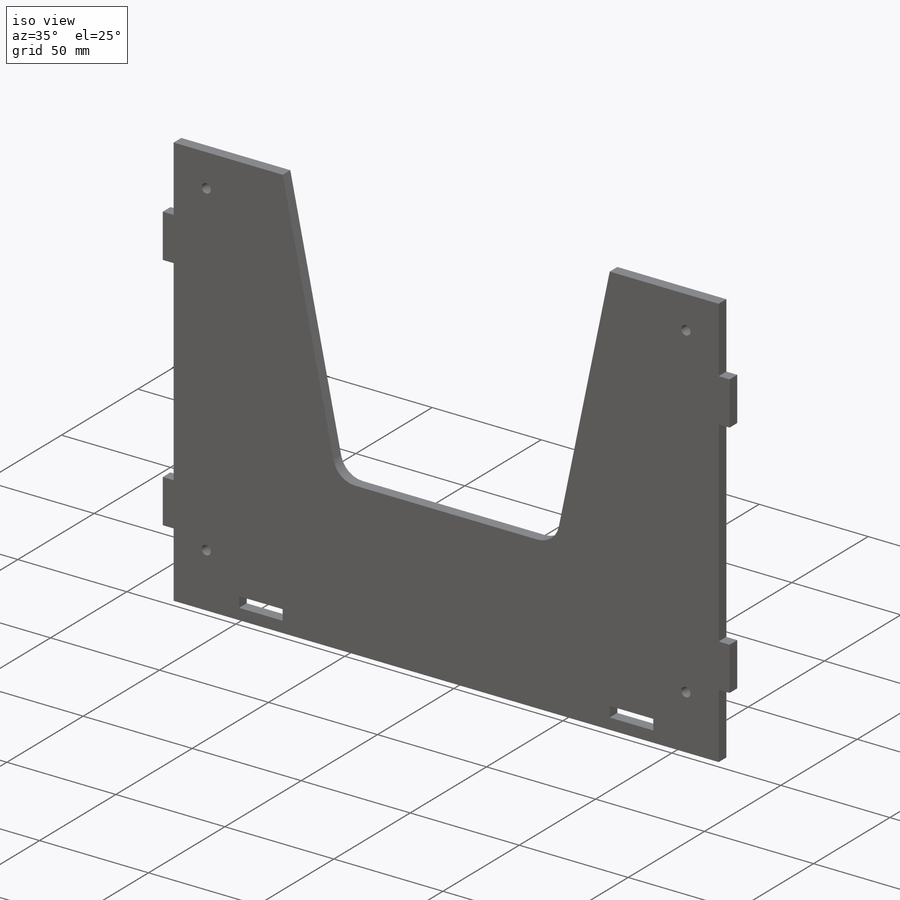
[diagram: iso view]
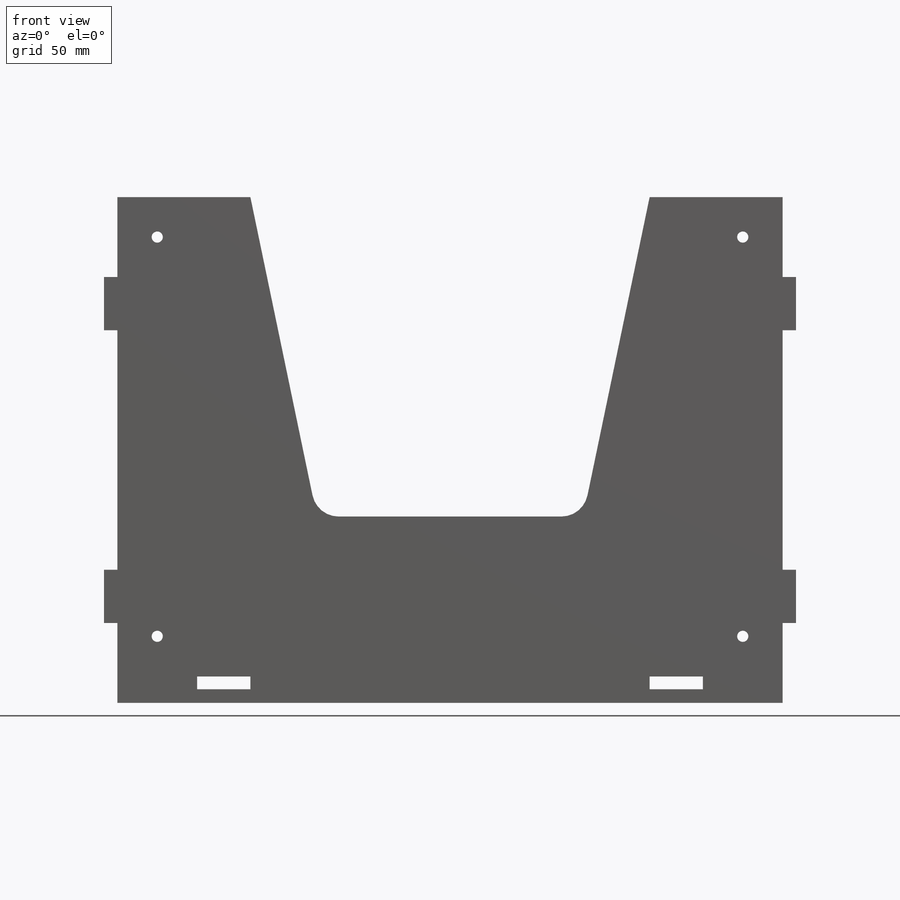
[diagram: front view]
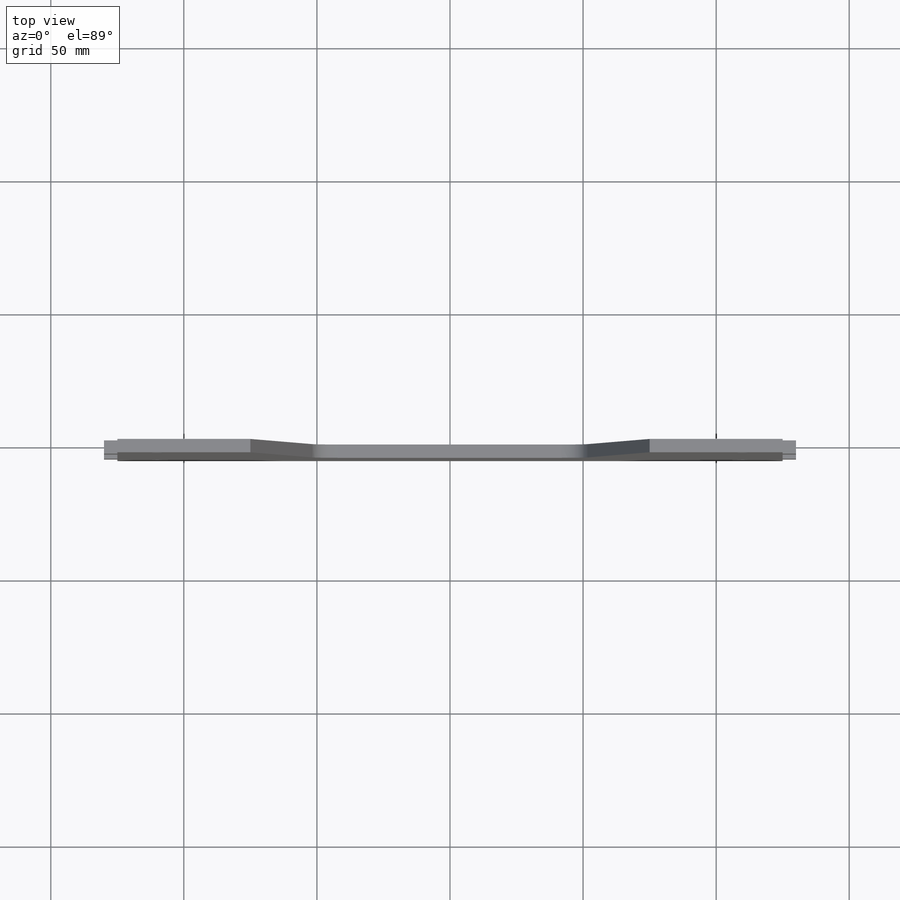
[diagram: top view]
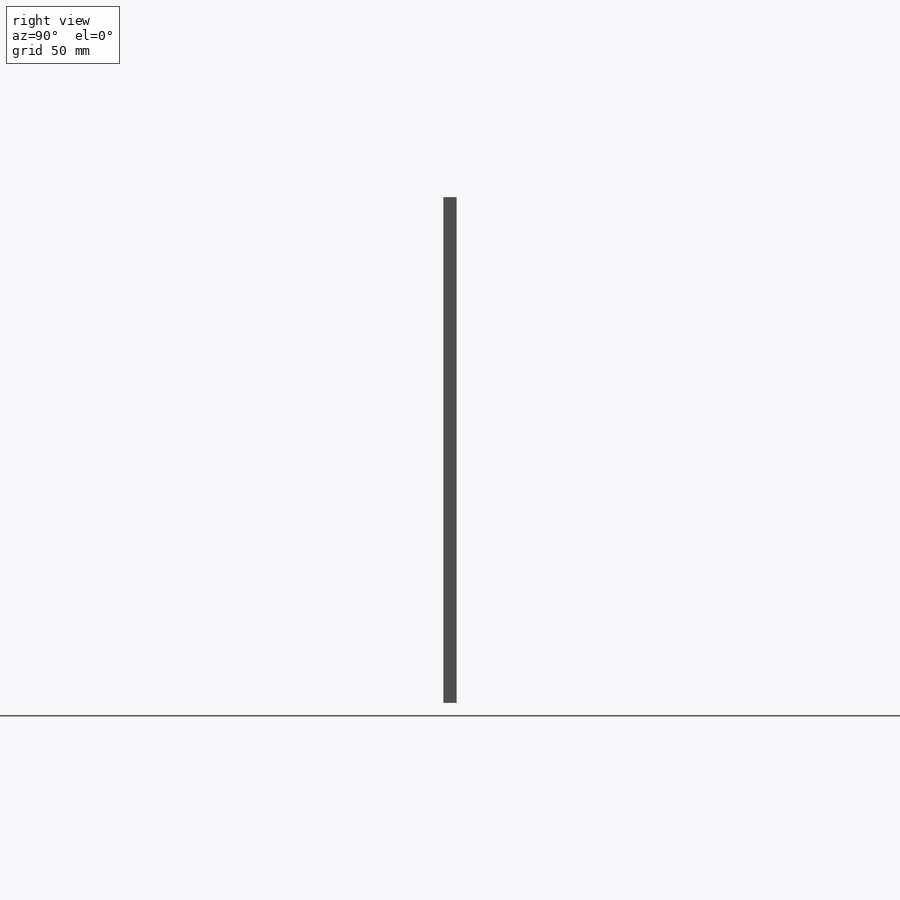
[diagram: right view]
SOLIDWORKS PART (.sldprt)
format: sldprt  version: not decoded by parser v0  size: 217,600 bytes
history: native  units: mm
features: sketch x2, material x1, extrude x1, fillet x1, cut_extrude x1 (+11 scaffold rows collapsed)
feature tree (17):
  scaffold x11  (default folders/planes/origin — collapsed)
  material  "Material <not specified>"
  sketch  "Sketch1"  dims[c1.D1=~96.169637mm c1.D2=250.0mm c2.D1=50.0mm c2.D2=50.0mm c2.D3=100.0mm c2.D4=50.0mm c2.D5=190.0mm c2.D6=70.0mm c2.D7=~4.540661mm c2.D8=20.0mm c3.D7=4.8mm c3.D8=0.1mm c3.D9=~4.507057mm c3.D10=20.0mm c4.D9=4.8mm c4.D10=0.1mm c4.D11=~19.081071mm c4.D12=5.0mm c5.D11=~28.525446mm c5.D12=5.0mm c6.D11=20.0mm c6.D12=20.0mm c6.D13=30.0mm c6.D14=30.0mm c6.D15=~20.087332mm c6.D16=5.0mm c7.D15=~23.083942mm c7.D16=5.0mm c8.D15=20.0mm c8.D16=20.0mm c8.D17=30.0mm c8.D18=30.0mm]
  extrude  "Boss-Extrude1"  Depth=5mm
  fillet  "Fillet1"  Radius=10mm
  sketch  "Sketch2"  dims[c1.D1=4.2mm c1.D2=4.2mm c1.D3=4.2mm c1.D5=4.2mm c1.D6=4.2mm c1.D7=4.2mm c1.D8=4.2mm c1.D9=4.2mm c2.D3=25.0mm c2.D4=15.0mm c2.D5=25.0mm c2.D6=15.0mm c2.D9=15.0mm c2.D10=15.0mm]
  cut_extrude  "Cut-Extrude1"  Depth=5mm
decode coverage: 5 of 5 modeling features carry decoded parameters
note: ~ marks probable driven/reference dimensions
note: suppression state not decoded; provenance and decode notes live in map.json
